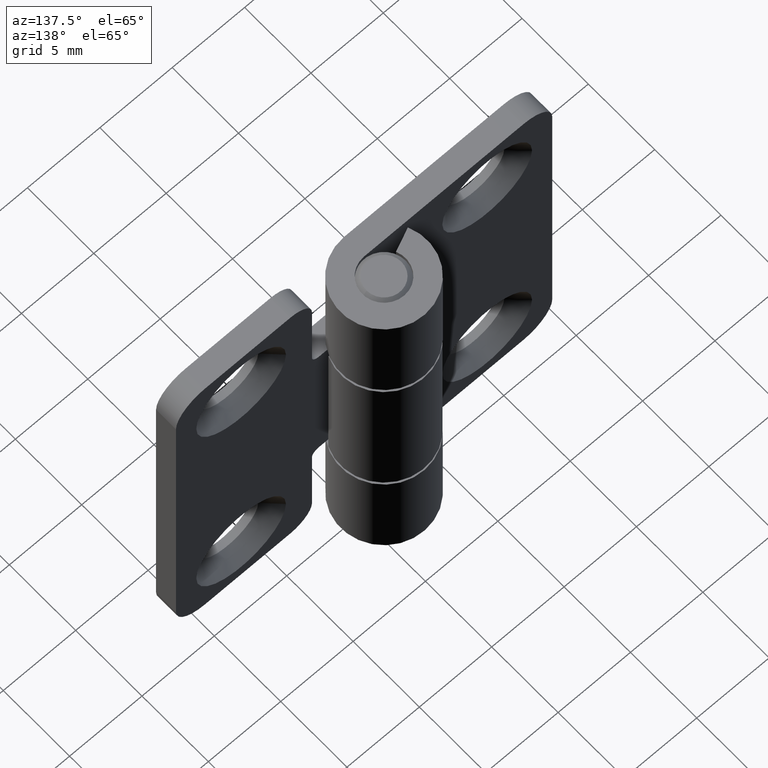
[diagram: clean part render]
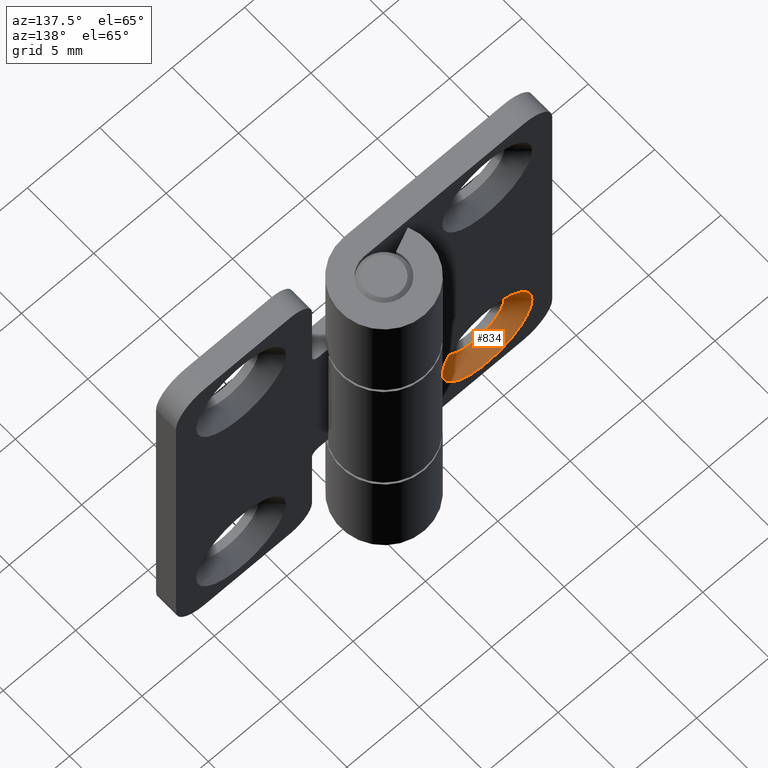
[diagram: same view with one face highlighted and labeled with its STEP entity id]
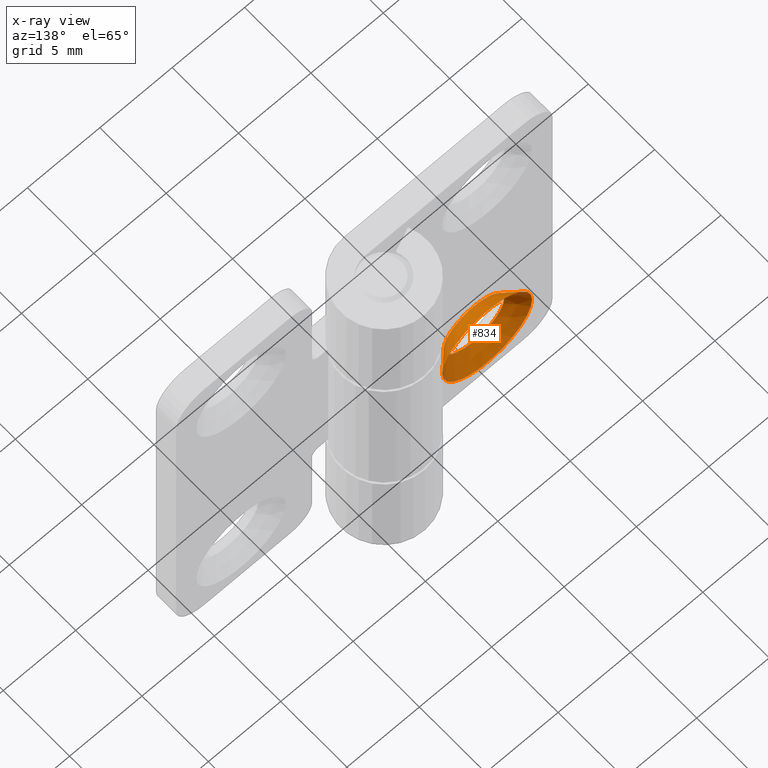
[diagram: x-ray of the same camera — body ghosted, the highlighted face saturated]
A machine part, auxiliary view. The second image highlights one B-rep face of the part: STEP entity #834.
The next image is the same camera in x-ray: the body ghosted, the highlighted face saturated — about 0% of this face is hidden behind the body in this view.
In plain terms, the highlighted conical surface has half-angle 45 deg.
Its self-contained STEP definition (entity closure, byte-faithful):
#42=CONICAL_SURFACE('',#906,2.6,0.785398163397448);
#51=FACE_BOUND('',#158,.T.);
#104=FACE_OUTER_BOUND('',#157,.T.);
#157=EDGE_LOOP('',(#647));
#158=EDGE_LOOP('',(#648));
#344=CIRCLE('',#888,3.1);
#352=CIRCLE('',#907,2.1);
#405=VERTEX_POINT('',#1306);
#416=VERTEX_POINT('',#1347);
#490=EDGE_CURVE('',#405,#405,#344,.T.);
#509=EDGE_CURVE('',#416,#416,#352,.T.);
#647=ORIENTED_EDGE('',*,*,#509,.F.);
#648=ORIENTED_EDGE('',*,*,#490,.F.);
#834=ADVANCED_FACE('',(#104,#51),#42,.F.);
#888=AXIS2_PLACEMENT_3D('',#1307,#1028,#1029);
#906=AXIS2_PLACEMENT_3D('',#1346,#1075,#1076);
#907=AXIS2_PLACEMENT_3D('',#1348,#1077,#1078);
#1028=DIRECTION('center_axis',(2.56205313375036E-16,-1.,0.));
#1029=DIRECTION('ref_axis',(1.,2.56205313375036E-16,0.));
#1075=DIRECTION('center_axis',(-2.56205313375036E-16,1.,0.));
#1076=DIRECTION('ref_axis',(1.,2.56205313375036E-16,0.));
#1077=DIRECTION('center_axis',(-2.56205313375036E-16,1.,0.));
#1078=DIRECTION('ref_axis',(1.,2.56205313375036E-16,0.));
#1306=CARTESIAN_POINT('',(5.4,-1.5,9.));
#1307=CARTESIAN_POINT('Origin',(8.5,-1.5,9.));
#1346=CARTESIAN_POINT('Origin',(8.5,-2.,9.));
#1347=CARTESIAN_POINT('',(6.4,-2.5,9.));
#1348=CARTESIAN_POINT('Origin',(8.5,-2.5,9.));